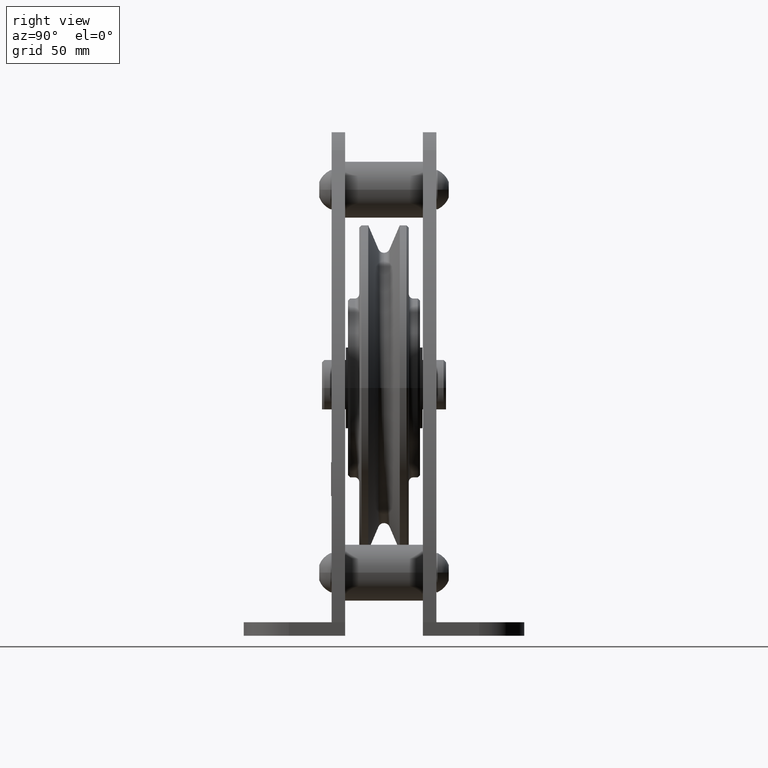
[diagram: clean part render]
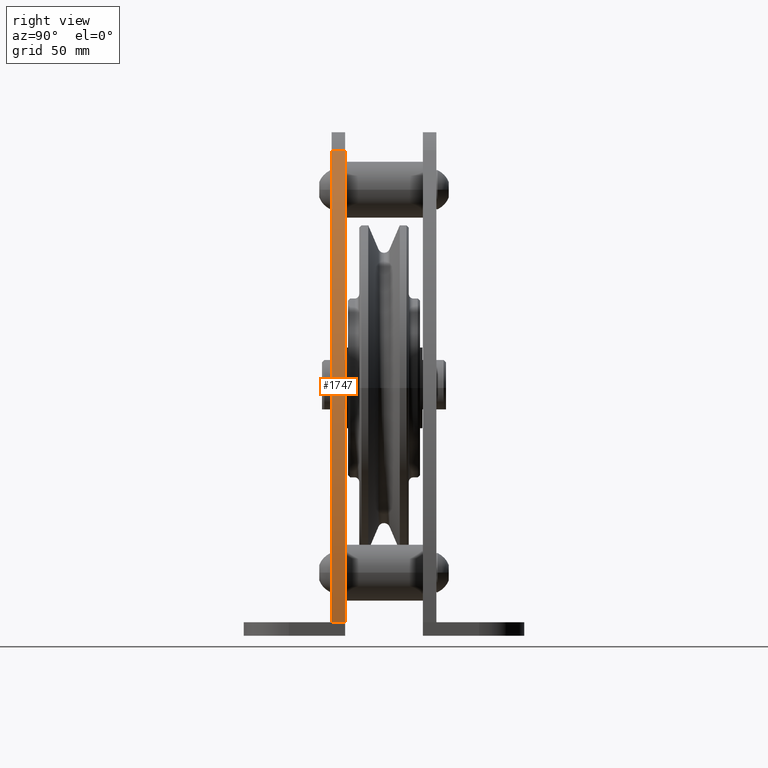
[diagram: same view with one face highlighted and labeled with its STEP entity id]
A machine part, right view. The second image highlights one B-rep face of the part: STEP entity #1747.
In plain terms, the highlighted cylindrical surface (partial cylindrical patch) has radius 310 mm, axis along (0, -1, 0).
Its self-contained STEP definition (entity closure, byte-faithful):
#1747=ADVANCED_FACE('',(#3683),#3684,.T.);
#3683=FACE_OUTER_BOUND('',#5789,.T.);
#3684=CYLINDRICAL_SURFACE('',#5790,309.999999979701);
#5789=EDGE_LOOP('',(#11346,#11347,#11348,#11349));
#5790=AXIS2_PLACEMENT_3D('',#11350,#11351,#11352);
#11346=ORIENTED_EDGE('',*,*,#13388,.T.);
#11347=ORIENTED_EDGE('',*,*,#14623,.F.);
#11348=ORIENTED_EDGE('',*,*,#14624,.T.);
#11349=ORIENTED_EDGE('',*,*,#14620,.T.);
#11350=CARTESIAN_POINT('',(-209.999999979701,-17.25,-103.9999999978));
#11351=DIRECTION('',(0.0,-1.0,0.0));
#11352=DIRECTION('',(1.0,0.0,-6.97995926336286E-012));
#13388=EDGE_CURVE('',#16491,#16489,#16492,.T.);
#14620=EDGE_CURVE('',#18139,#16491,#18140,.T.);
#14623=EDGE_CURVE('',#18143,#16489,#18144,.T.);
#14624=EDGE_CURVE('',#18143,#18139,#18145,.T.);
#16489=VERTEX_POINT('',#22826);
#16491=VERTEX_POINT('',#22829);
#16492=CIRCLE('',#22830,309.999999979701);
#18139=VERTEX_POINT('',#25857);
#18140=LINE('',#25858,#25859);
#18143=VERTEX_POINT('',#25862);
#18144=LINE('',#25863,#25864);
#18145=CIRCLE('',#25865,309.999999979701);
#22826=CARTESIAN_POINT('',(100.0,-23.25,-104.0));
#22829=CARTESIAN_POINT('',(18.4210526299208,-23.25,105.580110490116));
#22830=AXIS2_PLACEMENT_3D('',#27809,#27810,#27811);
#25857=CARTESIAN_POINT('',(18.4210526299208,-17.25,105.580110490116));
#25858=CARTESIAN_POINT('',(18.4210526299208,-17.25,105.580110490116));
#25859=VECTOR('',#28970,1.0);
#25862=CARTESIAN_POINT('',(100.0,-17.25,-104.0));
#25863=CARTESIAN_POINT('',(100.0,-17.25,-104.0));
#25864=VECTOR('',#28974,1.0);
#25865=AXIS2_PLACEMENT_3D('',#28975,#28976,#28977);
#27809=CARTESIAN_POINT('',(-209.999999979701,-23.25,-103.9999999978));
#27810=DIRECTION('',(-0.0,1.0,0.0));
#27811=DIRECTION('',(1.0,0.0,-6.97995926336286E-012));
#28970=DIRECTION('',(0.0,-1.0,0.0));
#28974=DIRECTION('',(0.0,-1.0,0.0));
#28975=CARTESIAN_POINT('',(-209.999999979701,-17.25,-103.9999999978));
#28976=DIRECTION('',(0.0,-1.0,0.0));
#28977=DIRECTION('',(1.0,0.0,-6.97995926336286E-012));